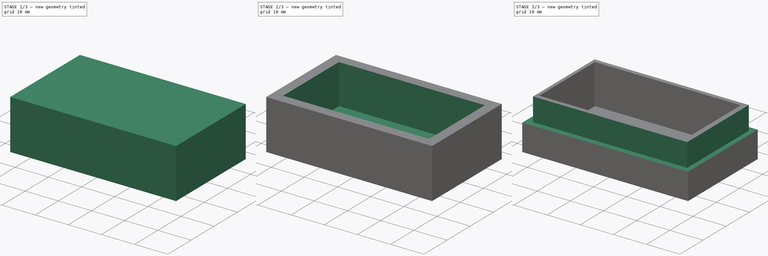
[diagram: build sequence overview — one tinted view per stage of 3, left to right]
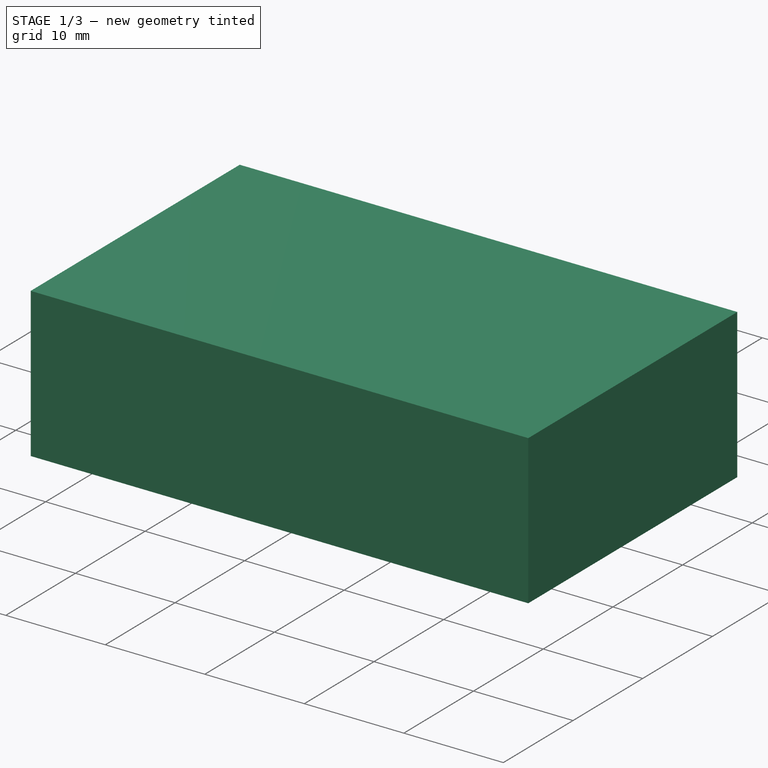
[diagram: stage 1 of 3 — iso view after this stage's code; geometry added in this stage tinted green]
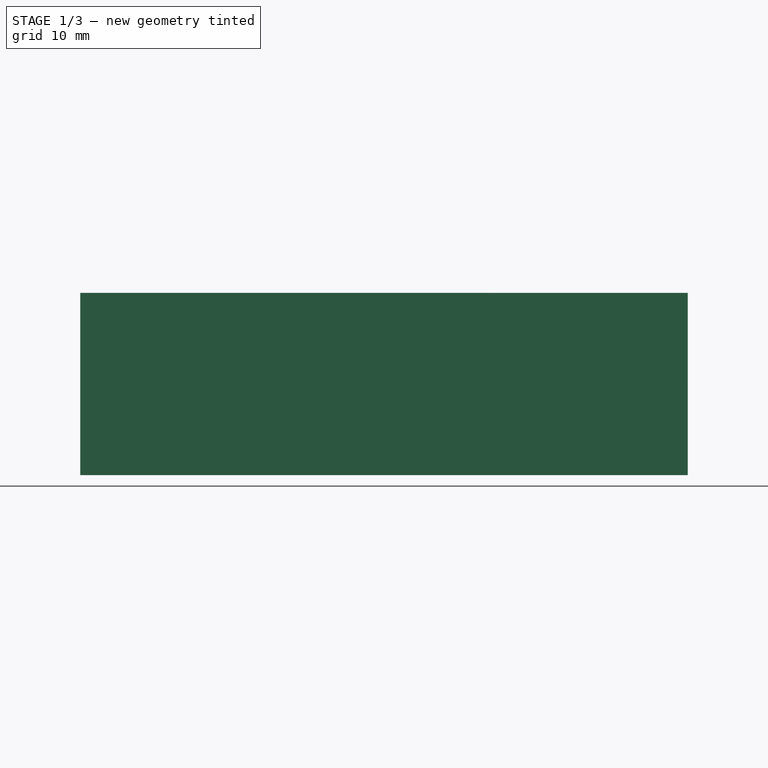
[diagram: stage 1 of 3 — front view after this stage's code; geometry added in this stage tinted green]
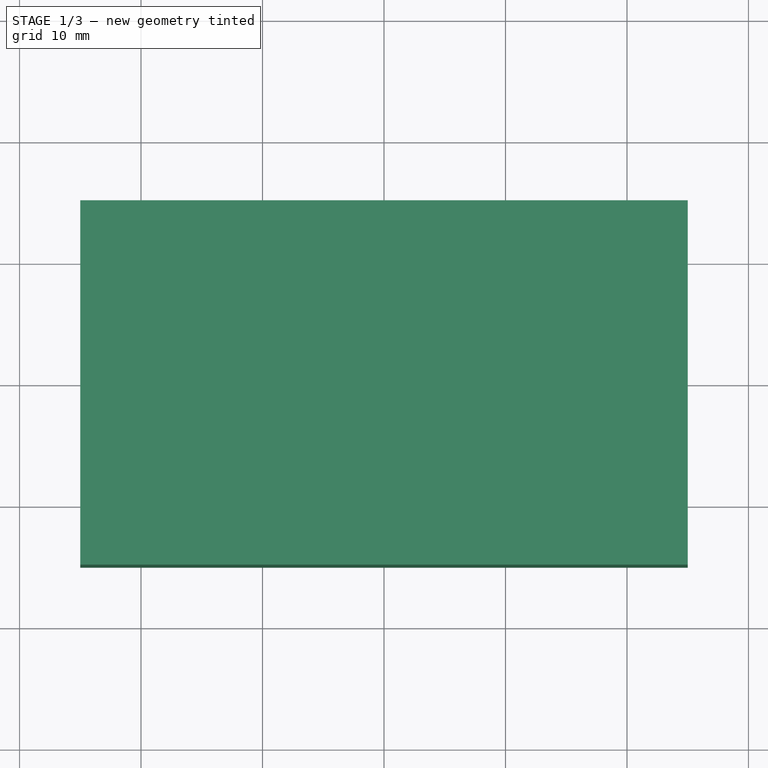
[diagram: stage 1 of 3 — top view after this stage's code; geometry added in this stage tinted green]
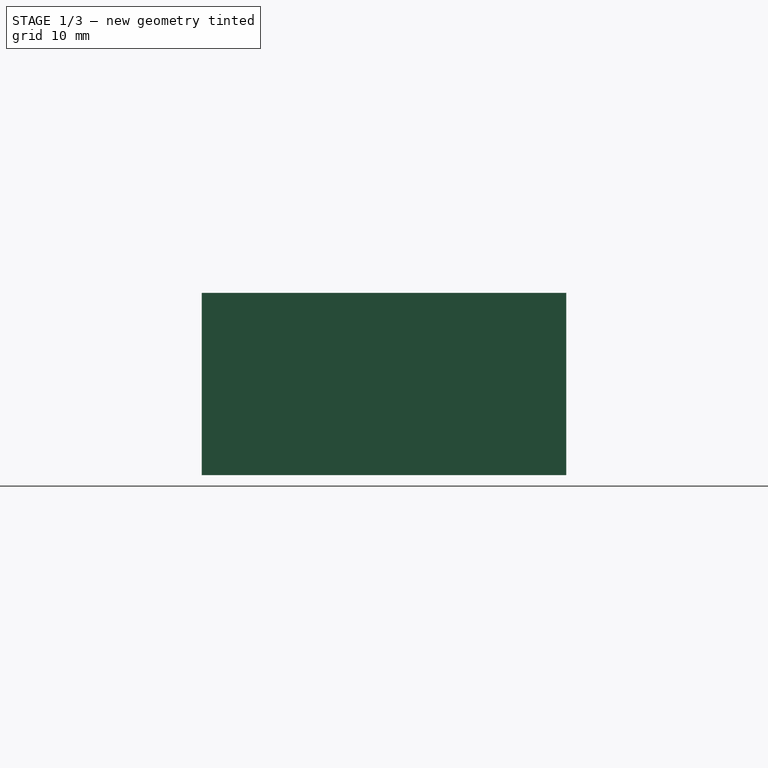
[diagram: stage 1 of 3 — right view after this stage's code; geometry added in this stage tinted green]
FCSTD DOCUMENT  (FreeCAD 0.17R13541 (Git))
Label: boiteCouvercle
License: All rights reserved
LicenseURL: http://en.wikipedia.org/wiki/All_rights_reserved
objects: Sketcher::SketchObject×4, Drawing::FeatureViewPart×4, PartDesign::Pocket×2, Drawing::FeatureViewPython×2, PartDesign::Pad×1, PartDesign::Body×1, Part::Part2DObjectPython×1, App::DocumentObjectGroup×1, Part::Extrusion×1, Part::Cut×1, Drawing::FeaturePage×1
note: 14 computed .brp shape members not serialized (recipe doc carries the construction recipe); baked Part::Feature solids carry a one-line shape summary decoded from their .brp

FEATURE [Sketcher::SketchObject] Sketch
  sketch-geometry (4):
    g0: LineSegment StartX=-25 StartY=15 StartZ=0 EndX=25 EndY=15 EndZ=0
    g1: LineSegment StartX=25 StartY=15 StartZ=0 EndX=25 EndY=-15 EndZ=0
    g2: LineSegment StartX=25 StartY=-15 StartZ=0 EndX=-25 EndY=-15 EndZ=0
    g3: LineSegment StartX=-25 StartY=-15 StartZ=0 EndX=-25 EndY=15 EndZ=0
  constraints (12):
    c: Coincident(g0,g1)
    c: Coincident(g1,g2)
    c: Coincident(g2,g3)
    c: Coincident(g3,g0)
    c: Horizontal(g0)
    c: Horizontal(g2)
    c: Vertical(g1)
    c: Vertical(g3)
    c: DistanceX(g0,g0) = 50
    c: DistanceY(g1,g1) = 30
    c: Symmetric(g0,g0,g-2)
    c: Symmetric(g0,g2,g-1)
FEATURE [PartDesign::Pad] Pad
  Length = 15
  Length2 = 100
  Profile = -> Sketch
  Type = 0
FEATURE [PartDesign::Body] Body
  Group = -> [Sketch,Pad,Sketch001,Sketch002,Pocket,Sketch003,Pocket001]
  Origin = -> Origin
  Tip = -> Pocket001
FEATURE [Part::Part2DObjectPython] ShapeString  # Draft 2D object (typed FeaturePython)
  FontFile = <path>
  Placement = pos=(-15,-2.86,0) rot=(0,0,1;0rad)
  Size = 5
  String = Boite
  Tracking = 0
FEATURE [App::DocumentObjectGroup] Construction
  Group = -> [ShapeString]
FEATURE [Part::Extrusion] Extrude
  Base = -> ShapeString
  Dir = (0,0,-1)
  DirMode = 0
  FaceMakerClass = Part::FaceMakerBullseye
  LengthFwd = -4
  LengthRev = 0
  Solid = false
  Symmetric = false
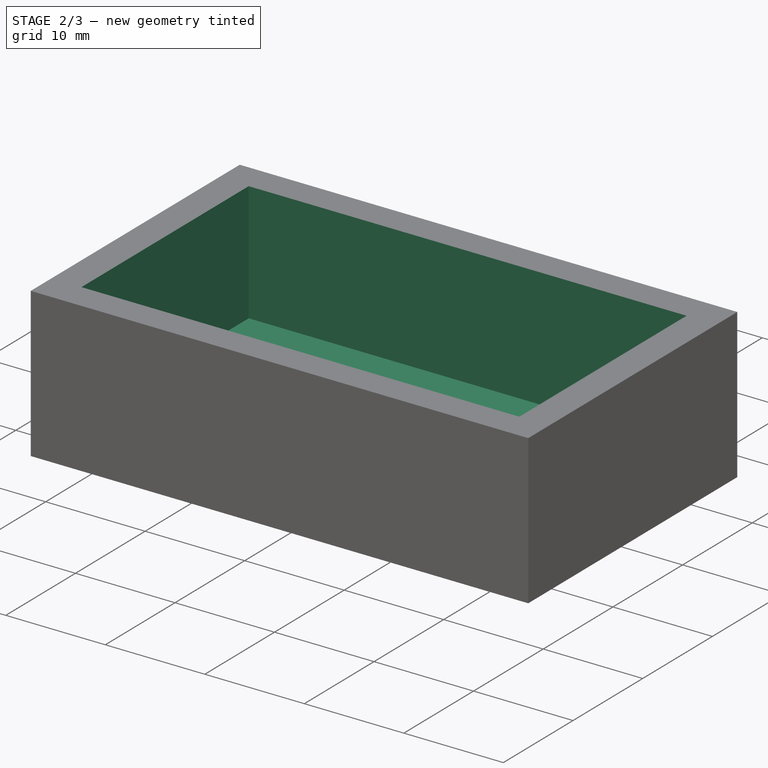
[diagram: stage 2 of 3 — iso view after this stage's code; geometry added in this stage tinted green]
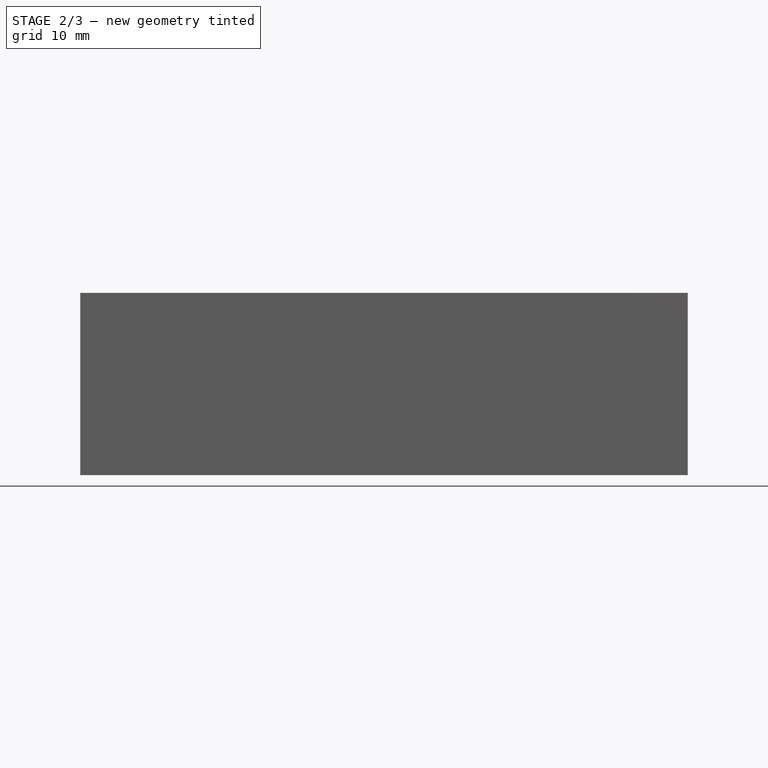
[diagram: stage 2 of 3 — front view after this stage's code; geometry added in this stage tinted green]
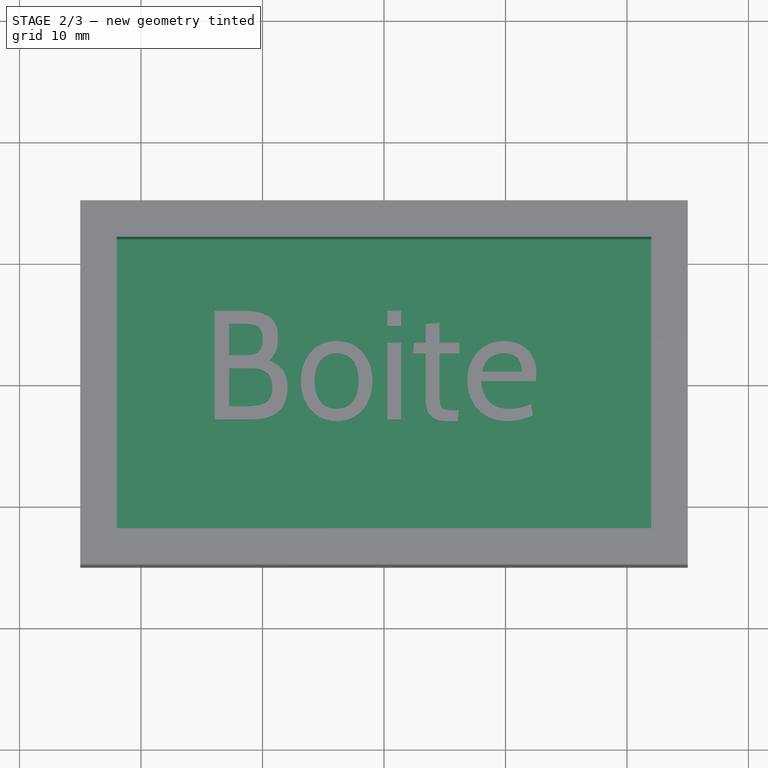
[diagram: stage 2 of 3 — top view after this stage's code; geometry added in this stage tinted green]
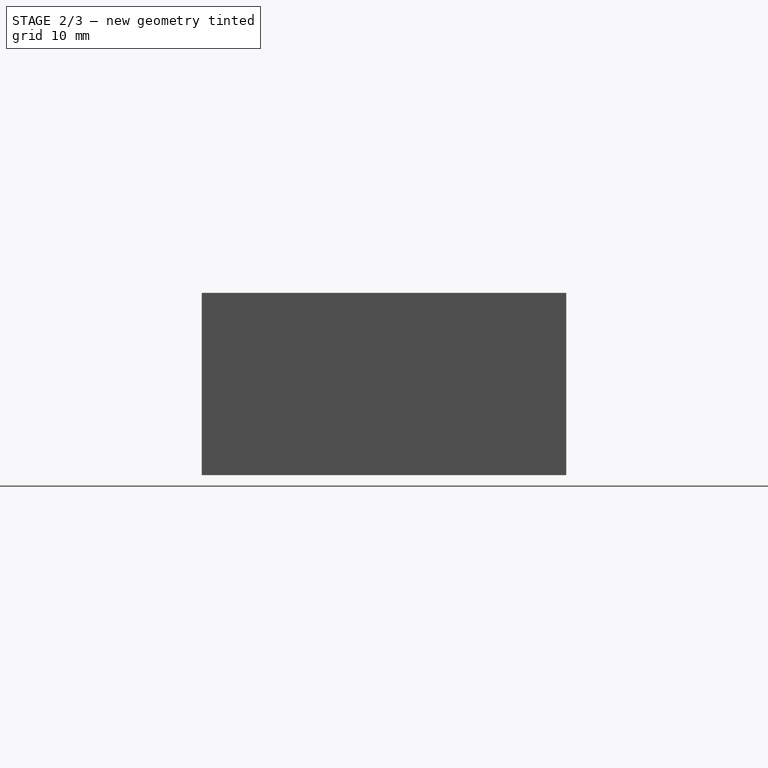
[diagram: stage 2 of 3 — right view after this stage's code; geometry added in this stage tinted green]
FEATURE [Sketcher::SketchObject] Sketch001
  MapMode = 5
  Support = -> [XY_Plane]
FEATURE [Sketcher::SketchObject] Sketch002
  MapMode = 5
  Placement = pos=(0,0,15) rot=(0,0,1;0rad)
  Support = -> [Pad]
  sketch-geometry (4):
    g0: LineSegment StartX=-22 StartY=12 StartZ=0 EndX=22 EndY=12 EndZ=0
    g1: LineSegment StartX=22 StartY=12 StartZ=0 EndX=22 EndY=-12 EndZ=0
    g2: LineSegment StartX=22 StartY=-12 StartZ=0 EndX=-22 EndY=-12 EndZ=0
    g3: LineSegment StartX=-22 StartY=-12 StartZ=0 EndX=-22 EndY=12 EndZ=0
  constraints (12):
    c: Coincident(g0,g1)
    c: Coincident(g1,g2)
    c: Coincident(g2,g3)
    c: Coincident(g3,g0)
    c: Horizontal(g0)
    c: Horizontal(g2)
    c: Vertical(g1)
    c: Vertical(g3)
    c: DistanceY(g1,g1) = 24
    c: DistanceX(g0,g0) = 44
    c: Symmetric(g0,g2,g-1)
    c: Symmetric(g1,g2,g-2)
FEATURE [PartDesign::Pocket] Pocket
  BaseFeature = -> Pad
  Length = 12
  Length2 = 100
  Profile = -> Sketch002
  Type = 0
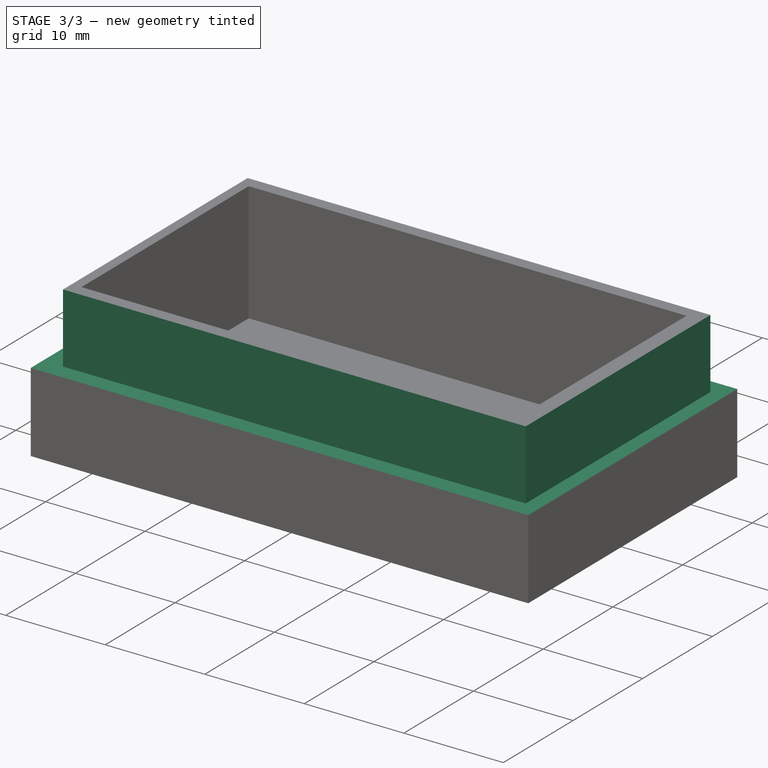
[diagram: stage 3 of 3 — iso view after this stage's code; geometry added in this stage tinted green]
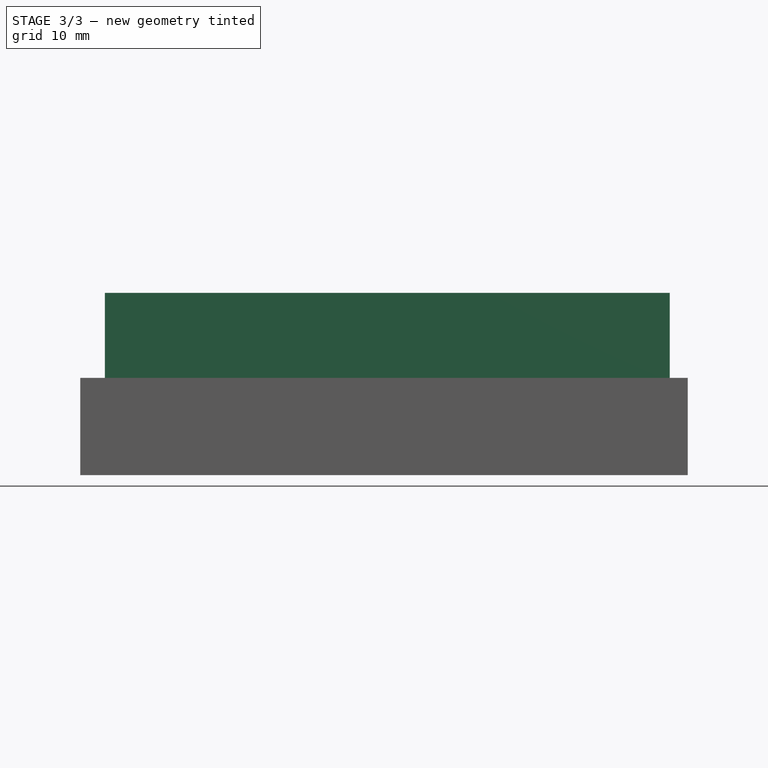
[diagram: stage 3 of 3 — front view after this stage's code; geometry added in this stage tinted green]
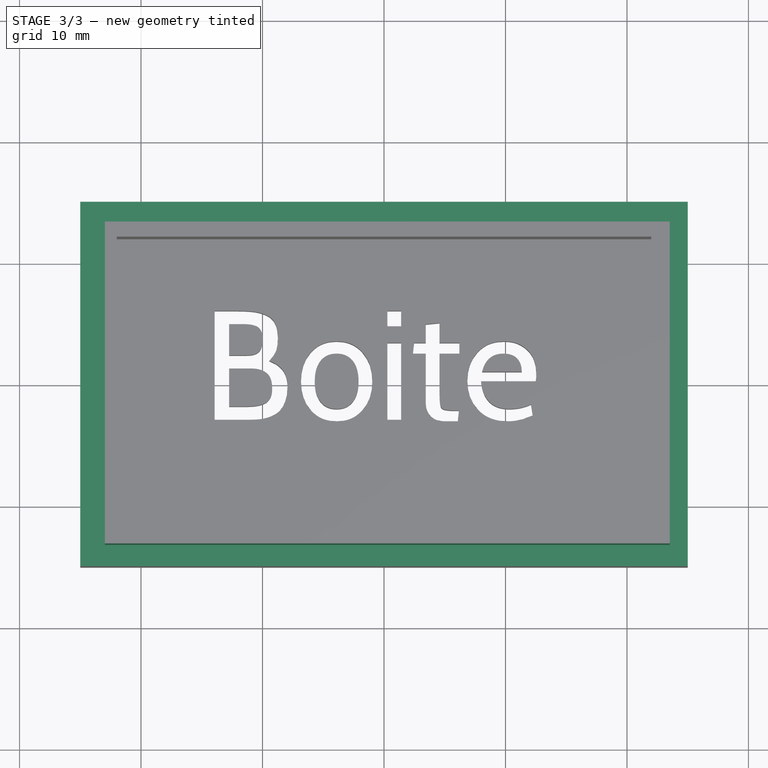
[diagram: stage 3 of 3 — top view after this stage's code; geometry added in this stage tinted green]
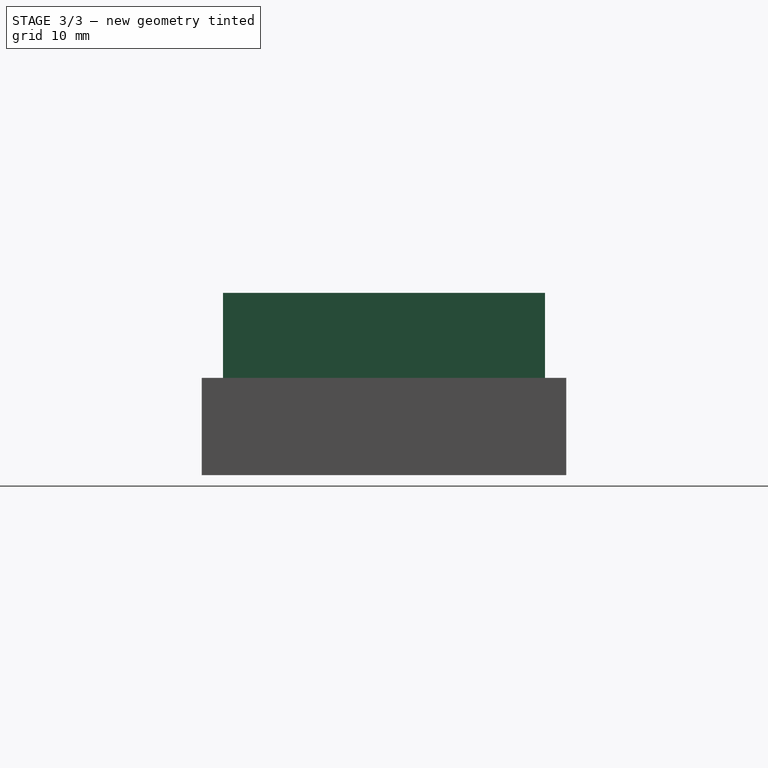
[diagram: stage 3 of 3 — right view after this stage's code; geometry added in this stage tinted green]
FEATURE [Sketcher::SketchObject] Sketch003
  MapMode = 5
  Placement = pos=(0,0,15) rot=(0,0,1;0rad)
  Support = -> [Pocket]
  sketch-geometry (8):
    g0: LineSegment StartX=-22.9771 StartY=13.25 StartZ=0 EndX=23.5229 EndY=13.25 EndZ=0
    g1: LineSegment StartX=23.5229 StartY=13.25 StartZ=0 EndX=23.5229 EndY=-13.25 EndZ=0
    g2: LineSegment StartX=23.5229 StartY=-13.25 StartZ=0 EndX=-22.9771 EndY=-13.25 EndZ=0
    g3: LineSegment StartX=-22.9771 StartY=-13.25 StartZ=0 EndX=-22.9771 EndY=13.25 EndZ=0
    g4: LineSegment StartX=-26.2668 StartY=16.991 StartZ=0 EndX=26.1706 EndY=16.991 EndZ=0
    g5: LineSegment StartX=26.1706 StartY=16.991 StartZ=0 EndX=26.1706 EndY=-16.1657 EndZ=0
    g6: LineSegment StartX=26.1706 StartY=-16.1657 StartZ=0 EndX=-26.2668 EndY=-16.1657 EndZ=0
    g7: LineSegment StartX=-26.2668 StartY=-16.1657 StartZ=0 EndX=-26.2668 EndY=16.991 EndZ=0
  constraints (16):
    c: Coincident(g1,g2)
    c: Coincident(g2,g3)
    c: Coincident(g3,g0)
    c: Horizontal(g0)
    c: Horizontal(g2)
    c: Vertical(g3)
    c: DistanceY(g1,g1) = 26.5
    c: DistanceX(g0,g0) = 46.5
    c: Coincident(g4,g5)
    c: Coincident(g5,g6)
    c: Coincident(g6,g7)
    c: Coincident(g7,g4)
    c: Horizontal(g4)
    c: Horizontal(g6)
    c: Vertical(g5)
    c: Vertical(g7)
FEATURE [PartDesign::Pocket] Pocket001
  BaseFeature = -> Pocket
  Length = 7
  Length2 = 100
  Profile = -> Sketch003
  Type = 0
FEATURE [Part::Cut] Cut
  Base = -> Pocket001
  Tool = -> Extrude
FEATURE [Drawing::FeatureViewPart] Ortho  label="Ortho_0_0"
  Direction = (1,0,0)
  HiddenWidth = 0.15
  LineWidth = 0.35
  Rotation = -90
  Scale = 1.5
  ShowHiddenLines = true
  ShowSmoothLines = false
  Source = -> Body
  Tolerance = 0.05
  ViewResult = <g id="Ortho_0_0"\n   transform="rotate(-90,84.8333,47.6667) translate(84.8333,47.6667) scale(1.5,1.5)"\n  >\n<g   fill="none"\n   stroke="rgb(0, 0, 0)"\n   stroke-dasharray="0.2,0.1)"\n   stroke-linecap="butt"\n   stroke-linejoin="miter"\n   stroke-width="0.100000"\n   transform="scale(1,-1)"\n  >\n<path id= "1" d=" M 0 -15 L 8 -15 " />\n<path id= "2" d=" M 0 15 L 0 -15 " />\n<path id= "3" d=" M 8 -15 L 8 15 " />\n<path id= "4" d=" M 8 13.25 L 8 -13.25 " />\n<path id= "5" d=" M 8 -13.25 L 8 13.25 " />\n<path id= "6" d=" M 0 15 L 8 15 " />\n<path id= "7" d=" M 15 13.25 L 8 13.25 " />\n<path id= "8" d=" M 15 13.25 L 15 -13.25 " />\n<path id= "9" d=" M 15 -13.25 L 8 -13.25 " />\n<path id= "10" d=" M 15 12 L 15 -12 " />\n<path id= "11" d=" M 15 -12 L 15 12 " />\n<path id= "12" d=" M 15 -12 L 3 -12 " />\n<path id= "13" d=" M 15 -12 L 3 -12 " />\n<path id= "14" d=" M 15 12 L 3 12 " />\n<path id= "15" d=" M 3 12 L 3 -12 " />\n<path id= "16" d=" M 3 -12 L 3 12 " />\n<path id= "17" d=" M 15 12 L 3 12 " />\n</g>\n<g   fill="none"\n   stroke="rgb(0, 0, 0)"\n   stroke-linecap="butt"\n   stroke-linejoin="miter"\n   stroke-width="0.233333"\n   transform="scale(1,-1)"\n  >\n<path id= "1" d=" M 0 -15 L 8 -15 " />\n<path id= "2" d=" M 0 -15 L 0 15 " />\n<path id= "3" d=" M 0 15 L 8 15 " />\n<path id= "4" d=" M 8 15 L 8 -15 " />\n<path id= "5" d=" M 15 13.25 L 8 13.25 " />\n<path id= "6" d=" M 15 -13.25 L 8 -13.25 " />\n<path id= "7" d=" M 15 -13.25 L 15 13.25 " />\n</g>\n</g>
  Visible = true
  X = 84.8333
  Y = 47.6667
FEATURE [Drawing::FeatureViewPart] Ortho001  label="Ortho_1_0"
  Direction = (0,1,0)
  HiddenWidth = 0.15
  LineWidth = 0.35
  Rotation = -90
  Scale = 1.5
  ShowHiddenLines = true
  ShowSmoothLines = false
  Source = -> Body
  Tolerance = 0.05
  ViewResult = <g id="Ortho_1_0"\n   transform="rotate(-90,197.167,47.6667) translate(197.167,47.6667) scale(1.5,1.5)"\n  >\n<g   fill="none"\n   stroke="rgb(0, 0, 0)"\n   stroke-dasharray="0.2,0.1)"\n   stroke-linecap="butt"\n   stroke-linejoin="miter"\n   stroke-width="0.100000"\n   transform="scale(1,-1)"\n  >\n<path id= "1" d=" M 0 25 L 0 -25 " />\n<path id= "2" d=" M 0 25 L 8 25 " />\n<path id= "3" d=" M 8 -25 L 8 25 " />\n<path id= "4" d=" M 8 23.5229 L 8 -22.9771 " />\n<path id= "5" d=" M 8 -22.9771 L 8 23.5229 " />\n<path id= "6" d=" M 0 -25 L 8 -25 " />\n<path id= "7" d=" M 15 -22.9771 L 8 -22.9771 " />\n<path id= "8" d=" M 15 23.5229 L 8 23.5229 " />\n<path id= "9" d=" M 15 23.5229 L 15 -22.9771 " />\n<path id= "10" d=" M 15 -22 L 15 22 " />\n<path id= "11" d=" M 15 22 L 15 -22 " />\n<path id= "12" d=" M 15 -22 L 3 -22 " />\n<path id= "13" d=" M 3 -22 L 3 22 " />\n<path id= "14" d=" M 15 22 L 3 22 " />\n<path id= "15" d=" M 15 -22 L 3 -22 " />\n<path id= "16" d=" M 15 22 L 3 22 " />\n<path id= "17" d=" M 3 22 L 3 -22 " />\n</g>\n<g   fill="none"\n   stroke="rgb(0, 0, 0)"\n   stroke-linecap="butt"\n   stroke-linejoin="miter"\n   stroke-width="0.233333"\n   transform="scale(1,-1)"\n  >\n<path id= "1" d=" M 0 -25 L 0 25 " />\n<path id= "2" d=" M 0 25 L 8 25 " />\n<path id= "3" d=" M 8 25 L 8 -25 " />\n<path id= "4" d=" M 0 -25 L 8 -25 " />\n<path id= "5" d=" M 15 -22.9771 L 8 -22.9771 " />\n<path id= "6" d=" M 15 -22.9771 L 15 23.5229 " />\n<path id= "7" d=" M 15 23.5229 L 8 23.5229 " />\n</g>\n</g>
  Visible = true
  X = 197.167
  Y = 47.6667
FEATURE [Drawing::FeatureViewPart] Ortho002  label="Ortho_1_-1"
  Direction = (0.57735,0.57735,-0.57735)
  HiddenWidth = 0.15
  LineWidth = 0.35
  Rotation = 60
  Scale = 1.5
  ShowHiddenLines = true
  ShowSmoothLines = false
  Source = -> Body
  Tolerance = 0.05
  ViewResult = <blob: 2825 chars omitted>
  Visible = true
  X = 197.167
  Y = 109.519
FEATURE [Drawing::FeatureViewPart] Ortho003  label="Ortho_0_-1"
  Direction = (0,0,-1)
  HiddenWidth = 0.15
  LineWidth = 0.35
  Rotation = 90
  Scale = 1.5
  ShowHiddenLines = true
  ShowSmoothLines = false
  Source = -> Body
  Tolerance = 0.05
  ViewResult = <g id="Ortho_0_-1"\n   transform="rotate(90,84.8333,100.333) translate(84.8333,100.333) scale(1.5,1.5)"\n  >\n<g   fill="none"\n   stroke="rgb(0, 0, 0)"\n   stroke-dasharray="0.2,0.1)"\n   stroke-linecap="butt"\n   stroke-linejoin="miter"\n   stroke-width="0.100000"\n   transform="scale(1,-1)"\n  >\n<path id= "1" d=" M -25 15 L 25 15 " />\n<path id= "2" d=" M -25 -15 L -25 15 " />\n<path id= "3" d=" M 25 15 L 25 -15 " />\n<path id= "4" d=" M 25 -15 L -25 -15 " />\n<path id= "5" d=" M 22.9771 -13.25 L 22.9771 13.25 " />\n<path id= "6" d=" M -23.5229 -13.25 L 22.9771 -13.25 " />\n<path id= "7" d=" M 22.9771 13.25 L -23.5229 13.25 " />\n<path id= "8" d=" M -23.5229 13.25 L -23.5229 -13.25 " />\n<path id= "9" d=" M 22.9771 -13.25 L 22.9771 13.25 " />\n<path id= "10" d=" M -23.5229 -13.25 L 22.9771 -13.25 " />\n<path id= "11" d=" M 22.9771 13.25 L -23.5229 13.25 " />\n<path id= "12" d=" M -23.5229 13.25 L -23.5229 -13.25 " />\n<path id= "13" d=" M 22 12 L -22 12 " />\n<path id= "14" d=" M 22 -12 L 22 12 " />\n<path id= "15" d=" M -22 12 L -22 -12 " />\n<path id= "16" d=" M -22 -12 L 22 -12 " />\n<path id= "17" d=" M 22 12 L -22 12 " />\n<path id= "18" d=" M 22 -12 L 22 12 " />\n<path id= "19" d=" M -22 12 L -22 -12 " />\n<path id= "20" d=" M -22 -12 L 22 -12 " />\n</g>\n<g   fill="none"\n   stroke="rgb(0, 0, 0)"\n   stroke-linecap="butt"\n   stroke-linejoin="miter"\n   stroke-width="0.233333"\n   transform="scale(1,-1)"\n  >\n<path id= "1" d=" M 25 15 L -25 15 " />\n<path id= "2" d=" M -25 15 L -25 -15 " />\n<path id= "3" d=" M -25 -15 L 25 -15 " />\n<path id= "4" d=" M 25 -15 L 25 15 " />\n</g>\n</g>
  Visible = true
  X = 84.8333
  Y = 100.333
FEATURE [Drawing::FeatureViewPython] dimStack001  # drawing view (typed FeaturePython)
  Rotation = 0
  ViewResult = <blob: 2559 chars omitted>
  Visible = true
  X = 0
  Y = 0
  arrowL1 = 3
  arrowL2 = 1
  arrowW = 2
  arrow_scheme = 0
  autoPlaceOffset = 2
  click1_x = 43.9483
  click1_y = 28.0981
  comma_decimal_place = false
  dimension_line_overshoot = 1
  gap_datum_points = 2
  lineColor = rgb(0,0,255)
  stack_offset = 7
  stack_offset0 = 0
  strokeWidth = 0.5
  textFormat_linear = %(value)3.3f
  textRenderer_color = rgb(0,0,255)
  textRenderer_family = inherit
  textRenderer_size = 3.6
  unit_custom_scale = 1
  unit_scheme = 1
FEATURE [Drawing::FeatureViewPython] dimStack002  # drawing view (typed FeaturePython)
  Rotation = 0
  ViewResult = <blob: 4361 chars omitted>
  Visible = true
  X = 0
  Y = 0
  arrowL1 = 3
  arrowL2 = 1
  arrowW = 2
  arrow_scheme = 0
  autoPlaceOffset = 2
  click1_x = 97.983
  click1_y = 153.219
  comma_decimal_place = false
  dimension_line_overshoot = 1
  gap_datum_points = 2
  lineColor = rgb(0,0,255)
  stack_offset = 7
  stack_offset0 = 0
  strokeWidth = 0.5
  textFormat_linear = %(value)3.3f
  textRenderer_color = rgb(0,0,255)
  textRenderer_family = inherit
  textRenderer_size = 3.6
  unit_custom_scale = 1
  unit_scheme = 1
FEATURE [Drawing::FeaturePage] Page
  EditableTexts = Designed by Name | Date | Scale | Weight | Title | Subtitle | Drawing number | Sheet
  Group = -> [Ortho,Ortho001,Ortho002,Ortho003,dimStack001,dimStack002]
  Template = D:/Program Files/FreeCAD 0.17/data/Mod/Drawing/Templates/A4_Landscape.svg
note: 1 file-system path scrubbed to <path> (originals preserved in the JSON sidecar)
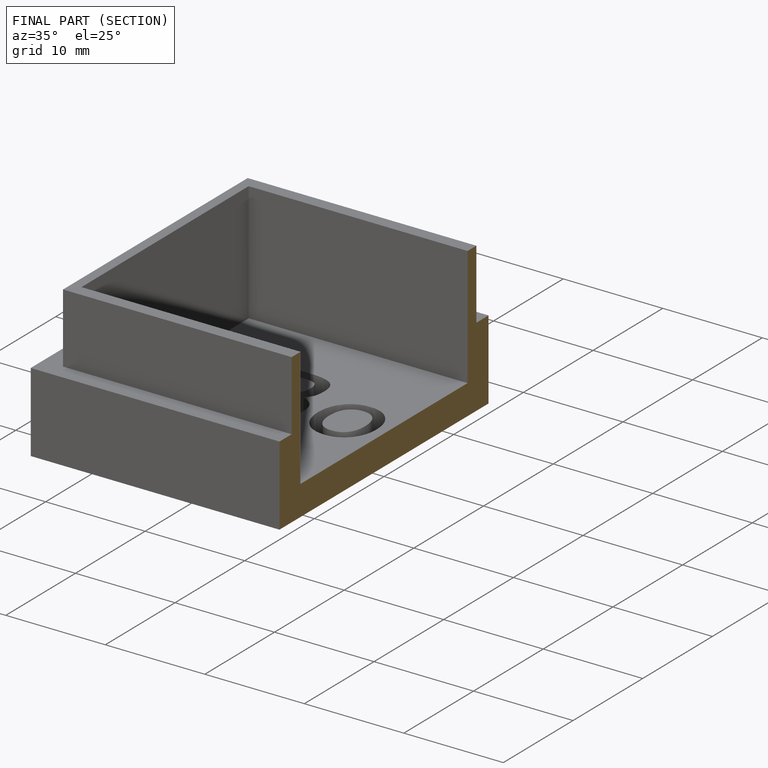
[diagram: finished part — half-section view (interior)]
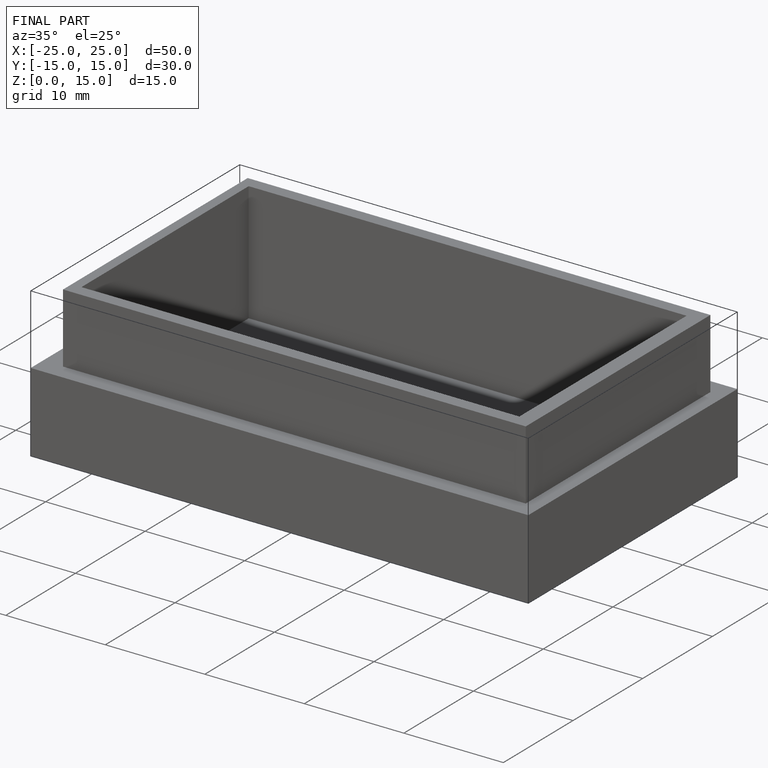
[diagram: finished part — iso view with bounding-box wireframe]
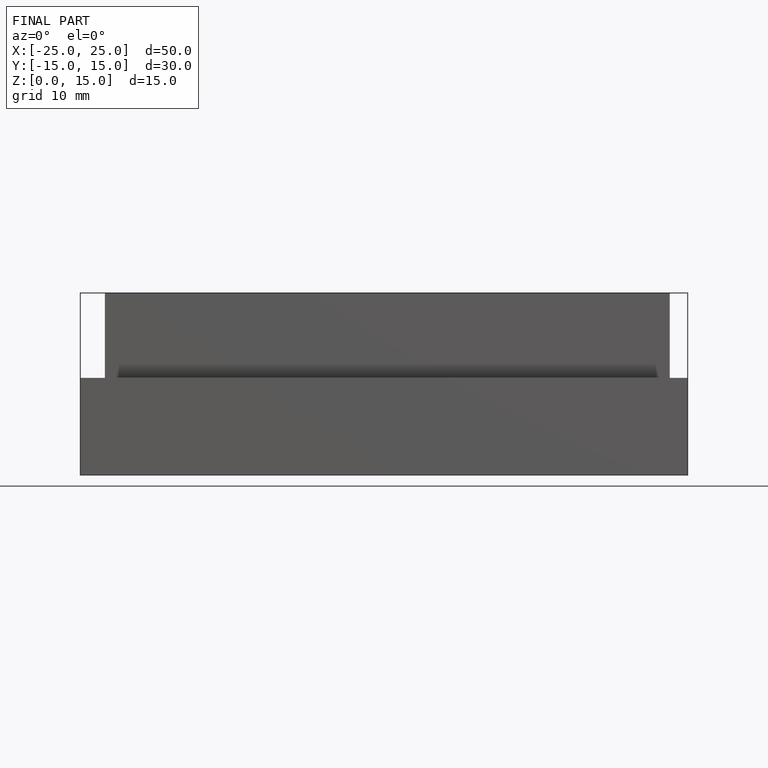
[diagram: finished part — front view with bounding-box wireframe]
